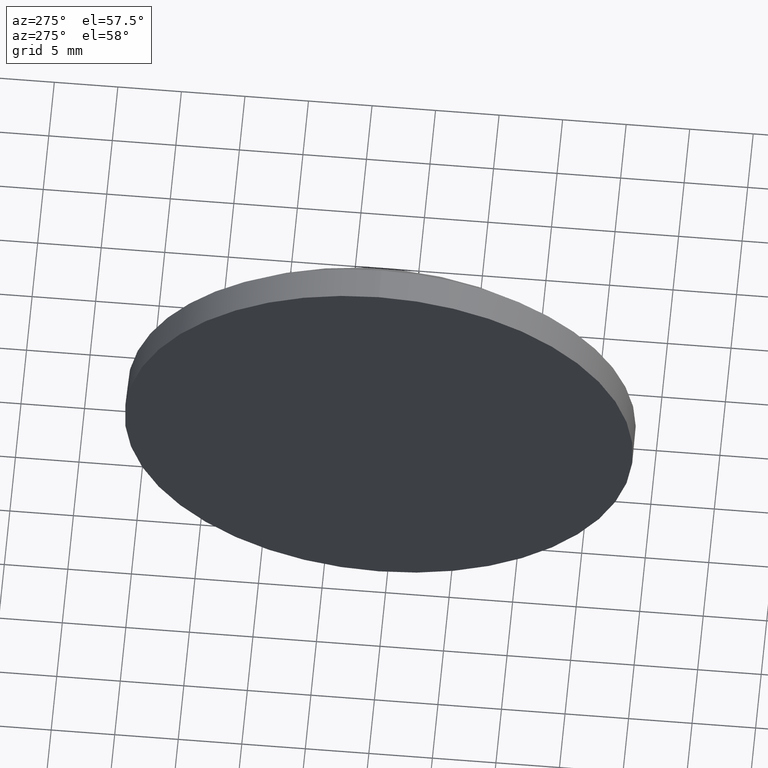
[diagram: clean part render]
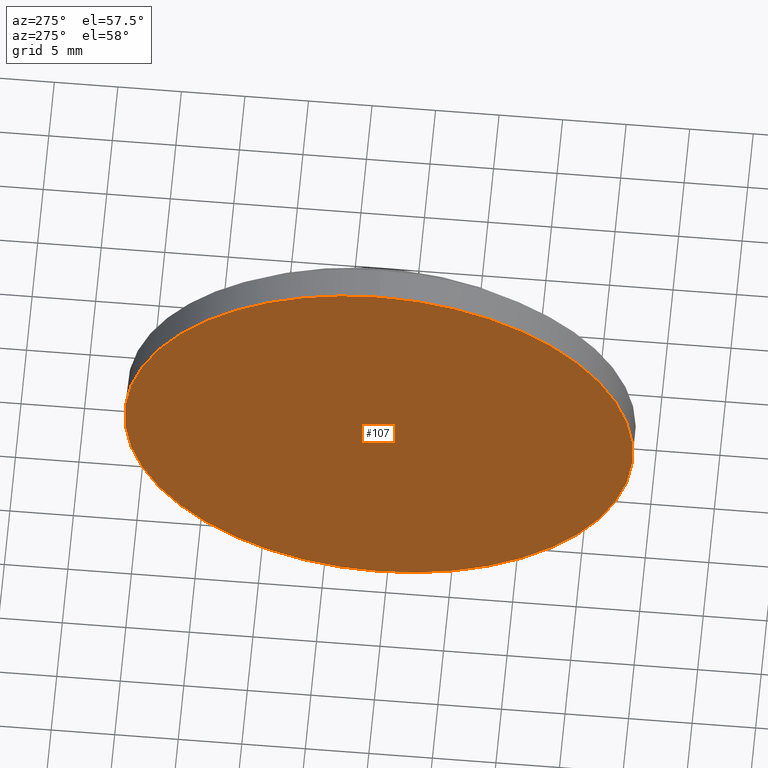
[diagram: same view with one face highlighted and labeled with its STEP entity id]
A machine part, auxiliary view. The second image highlights one B-rep face of the part: STEP entity #107.
In plain terms, the highlighted planar face has unit normal (1, 0, 0).
Its self-contained STEP definition (entity closure, byte-faithful):
#21 = CIRCLE ( 'NONE', #98, 19.99999999999999600 ) ;
#29 = CARTESIAN_POINT ( 'NONE',  ( 496.3823540077719400, 40.65244250545561000, -19.99999999999999600 ) ) ;
#38 = VERTEX_POINT ( 'NONE', #42 ) ;
#42 = CARTESIAN_POINT ( 'NONE',  ( 496.3823540077719400, 40.65244250545561000, 19.99999999999999600 ) ) ;
#51 = EDGE_CURVE ( 'NONE', #38, #186, #167, .T. ) ;
#55 = AXIS2_PLACEMENT_3D ( 'NONE', #60, #84, #125 ) ;
#57 = ORIENTED_EDGE ( 'NONE', *, *, #165, .T. ) ;
#60 = CARTESIAN_POINT ( 'NONE',  ( 496.3823540077719400, 40.65244250545561000, 0.0000000000000000000 ) ) ;
#64 = DIRECTION ( 'NONE',  ( -1.000000000000000000, -0.0000000000000000000, -0.0000000000000000000 ) ) ;
#74 = DIRECTION ( 'NONE',  ( 0.0000000000000000000, 0.0000000000000000000, -1.000000000000000000 ) ) ;
#84 = DIRECTION ( 'NONE',  ( -1.000000000000000000, -0.0000000000000000000, -0.0000000000000000000 ) ) ;
#98 = AXIS2_PLACEMENT_3D ( 'NONE', #157, #64, #120 ) ;
#100 = CARTESIAN_POINT ( 'NONE',  ( 496.3823540077719400, 40.65244250545561000, 0.0000000000000000000 ) ) ;
#107 = ADVANCED_FACE ( 'NONE', ( #166 ), #141, .F. ) ;
#120 = DIRECTION ( 'NONE',  ( 0.0000000000000000000, 0.0000000000000000000, 1.000000000000000000 ) ) ;
#125 = DIRECTION ( 'NONE',  ( 0.0000000000000000000, 0.0000000000000000000, 1.000000000000000000 ) ) ;
#141 = PLANE ( 'NONE',  #154 ) ;
#154 = AXIS2_PLACEMENT_3D ( 'NONE', #100, #169, #74 ) ;
#155 = ORIENTED_EDGE ( 'NONE', *, *, #51, .T. ) ;
#157 = CARTESIAN_POINT ( 'NONE',  ( 496.3823540077719400, 40.65244250545561000, 0.0000000000000000000 ) ) ;
#162 = EDGE_LOOP ( 'NONE', ( #155, #57 ) ) ;
#165 = EDGE_CURVE ( 'NONE', #186, #38, #21, .T. ) ;
#166 = FACE_OUTER_BOUND ( 'NONE', #162, .T. ) ;
#167 = CIRCLE ( 'NONE', #55, 19.99999999999999600 ) ;
#169 = DIRECTION ( 'NONE',  ( 1.000000000000000000, 0.0000000000000000000, 0.0000000000000000000 ) ) ;
#186 = VERTEX_POINT ( 'NONE', #29 ) ;